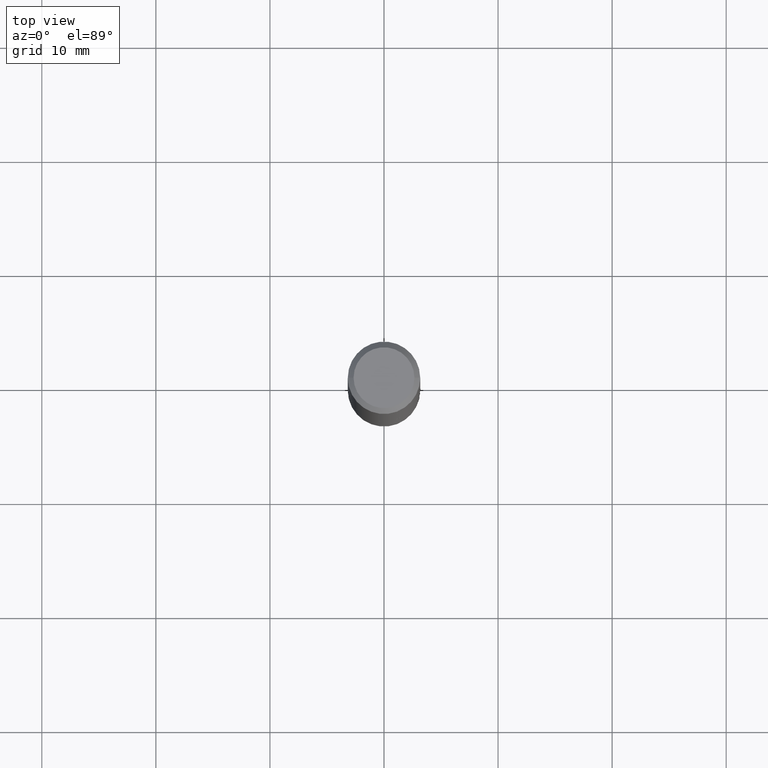
[diagram: clean part render]
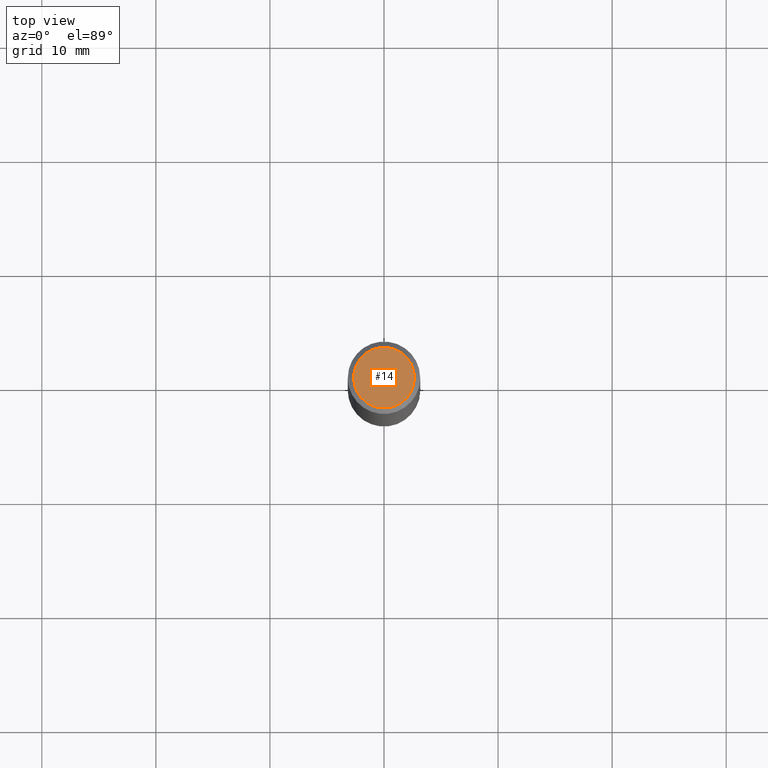
[diagram: same view with one face highlighted and labeled with its STEP entity id]
A machine part, top view. The second image highlights one B-rep face of the part: STEP entity #14.
In plain terms, the highlighted planar face has unit normal (0, -0, -1).
Its self-contained STEP definition (entity closure, byte-faithful):
#1 = EDGE_CURVE ( 'NONE', #131, #157, #38, .T. ) ;
#8 = DIRECTION ( 'NONE',  ( -2.445468806185136597E-29, 3.491481338843145583E-15, 1.000000000000000000 ) ) ;
#14 = ADVANCED_FACE ( 'NONE', ( #351 ), #255, .F. ) ;
#18 = CARTESIAN_POINT ( 'NONE',  ( -0.1049999999999998018, 7.681258945454876027E-16, -1.707404996040689597E-17 ) ) ;
#30 = CARTESIAN_POINT ( 'NONE',  ( 4.175405657340879278E-46, -5.961372681521788801E-32, -1.707404996040164512E-17 ) ) ;
#37 = DIRECTION ( 'NONE',  ( 2.438088387897960049E-29, -3.491481338843145188E-15, -1.000000000000000000 ) ) ;
#38 = CIRCLE ( 'NONE', #89, 0.1049999999999998018 ) ;
#45 = CARTESIAN_POINT ( 'NONE',  ( 0.1049999999999998018, -8.238720831321562839E-16, -1.707404996039620013E-17 ) ) ;
#69 = ORIENTED_EDGE ( 'NONE', *, *, #188, .T. ) ;
#89 = AXIS2_PLACEMENT_3D ( 'NONE', #209, #123, #118 ) ;
#94 = DIRECTION ( 'NONE',  ( -1.000000000000000000, 6.982962677686265922E-15, -4.876176775795935793E-29 ) ) ;
#98 = CARTESIAN_POINT ( 'NONE',  ( 7.332110811570565452E-16, 0.1049999999999998018, -3.751425655587304572E-16 ) ) ;
#118 = DIRECTION ( 'NONE',  ( 1.000000000000000000, -6.982962677686265922E-15, 4.876206205277402997E-29 ) ) ;
#123 = DIRECTION ( 'NONE',  ( -2.445468806185136597E-29, 3.491481338843145583E-15, 1.000000000000000000 ) ) ;
#124 = AXIS2_PLACEMENT_3D ( 'NONE', #30, #8, #312 ) ;
#131 = VERTEX_POINT ( 'NONE', #18 ) ;
#157 = VERTEX_POINT ( 'NONE', #45 ) ;
#188 = EDGE_CURVE ( 'NONE', #157, #131, #234, .T. ) ;
#209 = CARTESIAN_POINT ( 'NONE',  ( 4.175405657340879278E-46, -5.961372681521788801E-32, -1.707404996040164512E-17 ) ) ;
#234 = CIRCLE ( 'NONE', #124, 0.1049999999999998018 ) ;
#252 = ORIENTED_EDGE ( 'NONE', *, *, #1, .T. ) ;
#255 = PLANE ( 'NONE',  #342 ) ;
#312 = DIRECTION ( 'NONE',  ( 1.000000000000000000, -6.982962677686265922E-15, 4.876206205277402997E-29 ) ) ;
#318 = EDGE_LOOP ( 'NONE', ( #252, #69 ) ) ;
#342 = AXIS2_PLACEMENT_3D ( 'NONE', #98, #37, #94 ) ;
#351 = FACE_OUTER_BOUND ( 'NONE', #318, .T. ) ;